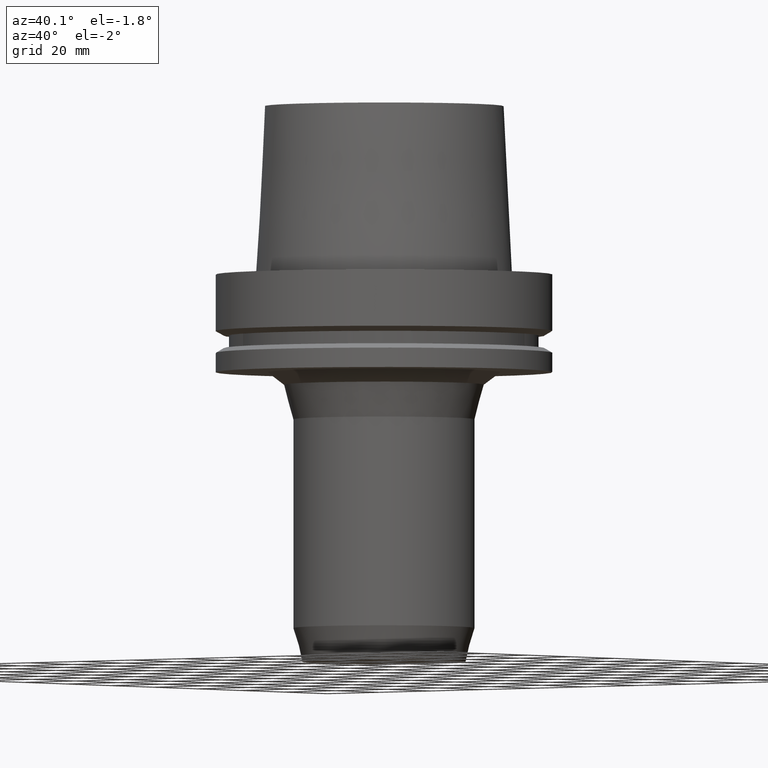
[diagram: clean part render]
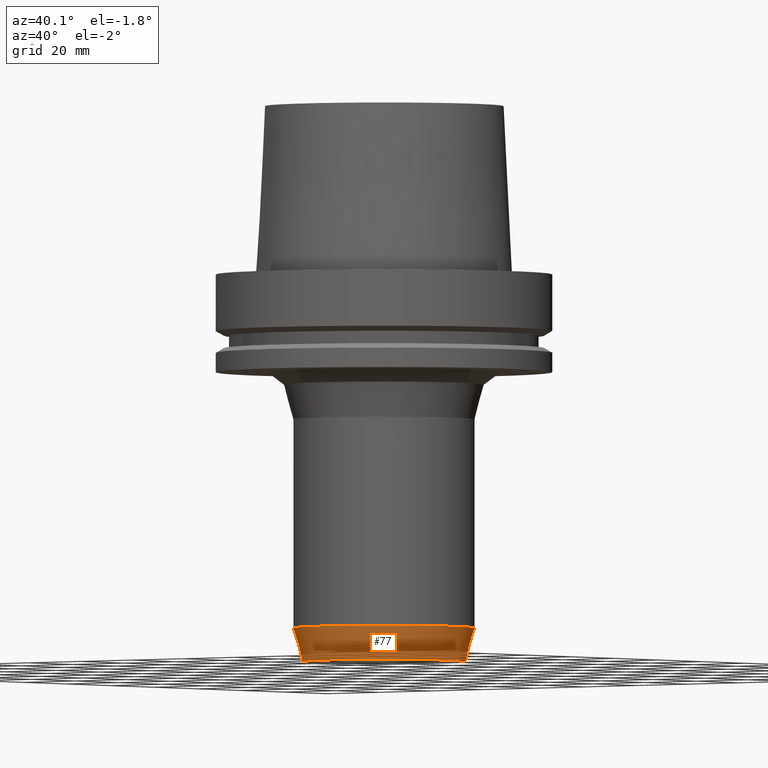
[diagram: same view with one face highlighted and labeled with its STEP entity id]
A machine part, auxiliary view. The second image highlights one B-rep face of the part: STEP entity #77.
In plain terms, the highlighted conical surface has half-angle 15 deg.
Its self-contained STEP definition (entity closure, byte-faithful):
#77=ADVANCED_FACE('',(#96,#97),#98,.T.);
#96=FACE_BOUND('',#142,.T.);
#97=FACE_BOUND('',#143,.T.);
#98=CONICAL_SURFACE('',#144,25.6602540369655,0.261799387417658);
#142=EDGE_LOOP('',(#192));
#143=EDGE_LOOP('',(#193));
#144=AXIS2_PLACEMENT_3D('',#194,#195,#196);
#192=ORIENTED_EDGE('',*,*,#264,.F.);
#193=ORIENTED_EDGE('',*,*,#263,.T.);
#194=CARTESIAN_POINT('',(6.7355573946424E-015,1.34711147892848E-014,-109.99999998909));
#195=DIRECTION('',(-6.12323399573677E-017,-1.22464679914735E-016,1.0));
#196=DIRECTION('',(-1.23259516440783E-032,1.0,1.22464679914735E-016));
#263=EDGE_CURVE('',#279,#279,#280,.T.);
#264=EDGE_CURVE('',#281,#281,#282,.T.);
#279=VERTEX_POINT('',#309);
#280=CIRCLE('',#310,24.320508073931);
#281=VERTEX_POINT('',#311);
#282=CIRCLE('',#312,27.0);
#309=CARTESIAN_POINT('',(7.04171909509728E-015,24.320508073931,-115.0));
#310=AXIS2_PLACEMENT_3D('',#340,#341,#342);
#311=CARTESIAN_POINT('',(6.42939569418752E-015,27.0,-104.99999997818));
#312=AXIS2_PLACEMENT_3D('',#343,#344,#345);
#340=CARTESIAN_POINT('',(7.04171909509728E-015,1.40834381901946E-014,-115.0));
#341=DIRECTION('',(-6.12323399573677E-017,-1.22464679914735E-016,1.0));
#342=DIRECTION('',(-1.23259516440783E-032,1.0,1.22464679914735E-016));
#343=CARTESIAN_POINT('',(6.42939569418752E-015,1.2858791388375E-014,-104.99999997818));
#344=DIRECTION('',(-6.12323399573677E-017,-1.22464679914735E-016,1.0));
#345=DIRECTION('',(-1.23259516440783E-032,1.0,1.22464679914735E-016));